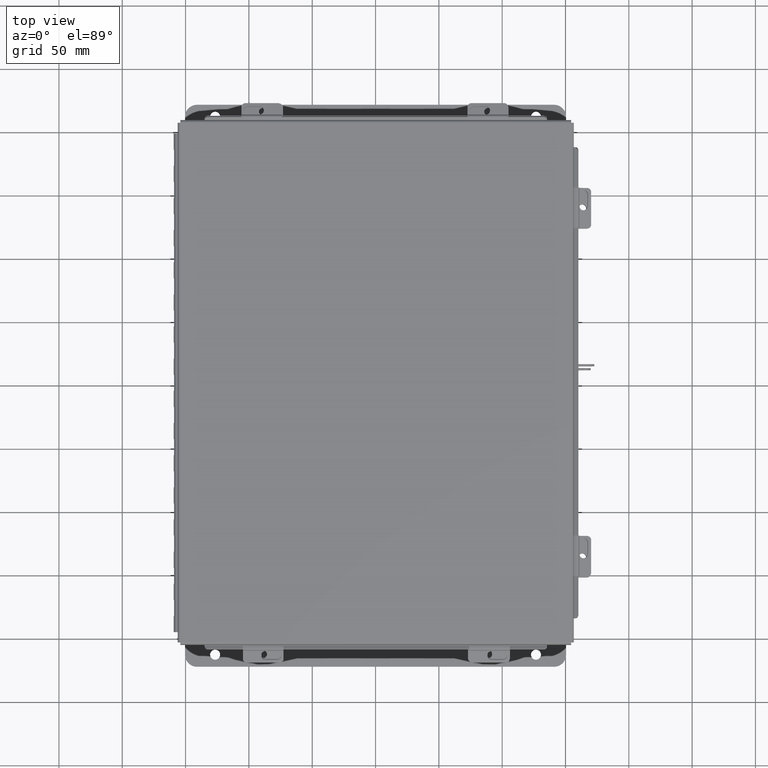
[diagram: clean part render]
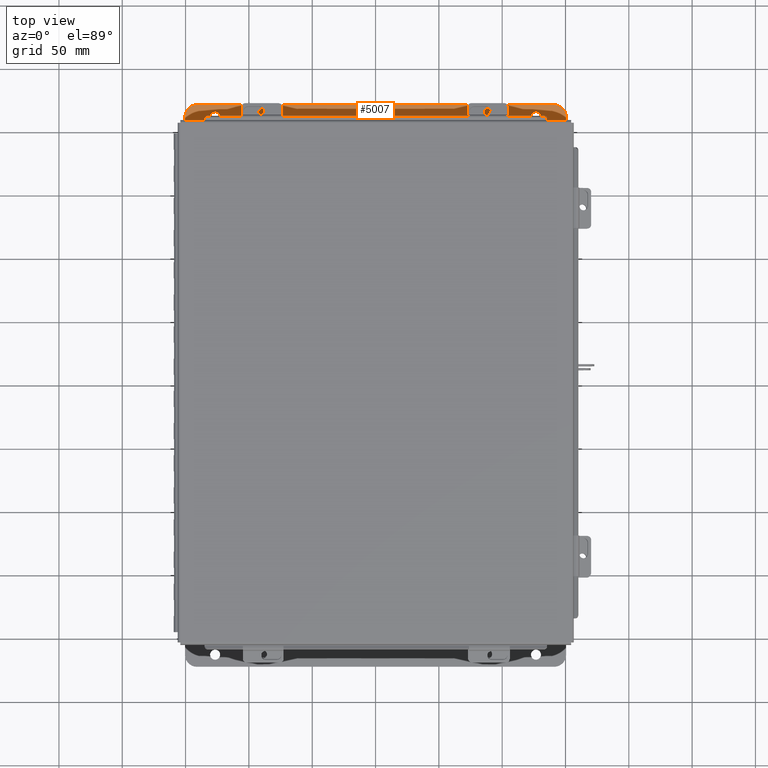
[diagram: same view with one face highlighted and labeled with its STEP entity id]
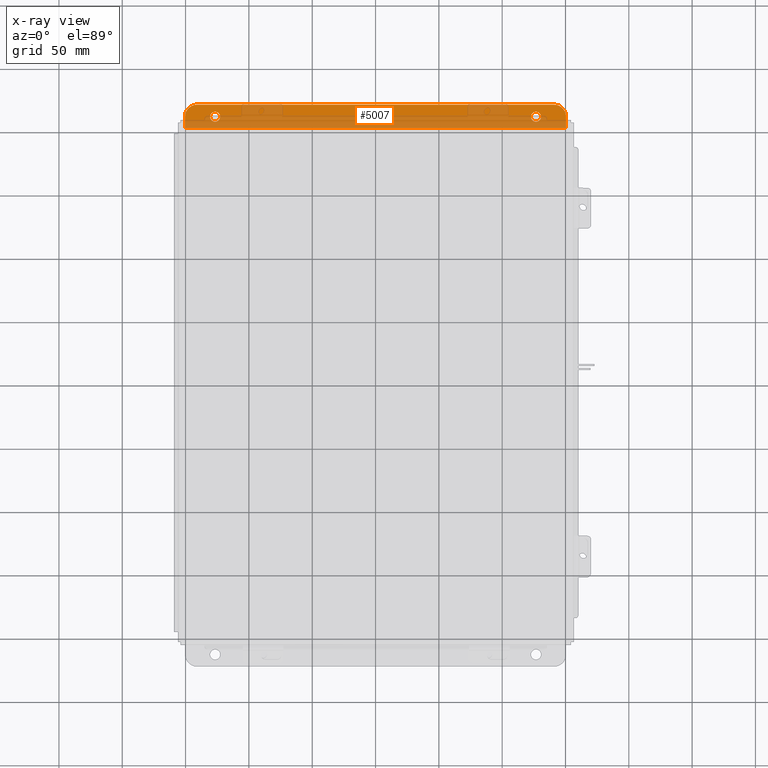
[diagram: x-ray of the same camera — body ghosted, the highlighted face saturated]
A machine part, top view. The second image highlights one B-rep face of the part: STEP entity #5007.
The next image is the same camera in x-ray: the body ghosted, the highlighted face saturated — about 61% of this face is hidden behind the body in this view.
In plain terms, the highlighted planar face has unit normal (0, 0, 1).
Its self-contained STEP definition (entity closure, byte-faithful):
#210 = DIRECTION ( 'NONE',  ( 0.0000000000000000000, -1.000000000000000000, 3.702694488566362300E-015 ) ) ;
#238 = VERTEX_POINT ( 'NONE', #7470 ) ;
#1096 = CARTESIAN_POINT ( 'NONE',  ( 4.987799999999998200, 0.3627999999999997300, -3.112300000000001200 ) ) ;
#1121 = FACE_BOUND ( 'NONE', #16791, .T. ) ;
#1174 = CIRCLE ( 'NONE', #14979, 0.3750000000000000600 ) ;
#1307 = ORIENTED_EDGE ( 'NONE', *, *, #19616, .F. ) ;
#1407 = CARTESIAN_POINT ( 'NONE',  ( 5.925299999999999100, 0.3627999999999997300, -3.112300000000001200 ) ) ;
#1458 = AXIS2_PLACEMENT_3D ( 'NONE', #17890, #8555, #19456 ) ;
#1601 = EDGE_CURVE ( 'NONE', #2248, #5212, #11404, .T. ) ;
#1748 = EDGE_CURVE ( 'NONE', #17316, #238, #14274, .T. ) ;
#1831 = CARTESIAN_POINT ( 'NONE',  ( 5.925299999999999100, 0.7378000000000000100, -3.112300000000003000 ) ) ;
#2062 = CARTESIAN_POINT ( 'NONE',  ( 5.550299999999999100, 0.7378000000000000100, -3.112300000000003000 ) ) ;
#2114 = CARTESIAN_POINT ( 'NONE',  ( 5.925299999999999100, 0.0000000000000000000, -3.112299999999999800 ) ) ;
#2243 = ORIENTED_EDGE ( 'NONE', *, *, #13269, .T. ) ;
#2248 = VERTEX_POINT ( 'NONE', #5188 ) ;
#3008 = EDGE_CURVE ( 'NONE', #6404, #17297, #18123, .T. ) ;
#3075 = VERTEX_POINT ( 'NONE', #16024 ) ;
#3082 = VECTOR ( 'NONE', #19415, 39.37007874015748100 ) ;
#3734 = DIRECTION ( 'NONE',  ( -0.0000000000000000000, -3.702694488566362300E-015, -1.000000000000000000 ) ) ;
#4056 = DIRECTION ( 'NONE',  ( 0.0000000000000000000, 3.702694488566362300E-015, 1.000000000000000000 ) ) ;
#4589 = ORIENTED_EDGE ( 'NONE', *, *, #1748, .T. ) ;
#4635 = EDGE_CURVE ( 'NONE', #9420, #10328, #18802, .T. ) ;
#5007 = ADVANCED_FACE ( 'NONE', ( #1121, #9373, #14014 ), #6392, .T. ) ;
#5049 = CARTESIAN_POINT ( 'NONE',  ( -5.550299999999999100, 0.7378000000000000100, -3.112300000000003000 ) ) ;
#5188 = CARTESIAN_POINT ( 'NONE',  ( -5.925300000000000000, 0.01300000000000010700, -3.112299999999999800 ) ) ;
#5212 = VERTEX_POINT ( 'NONE', #10092 ) ;
#5876 = EDGE_LOOP ( 'NONE', ( #17240, #17440, #13949, #2243, #15190, #1307 ) ) ;
#5896 = AXIS2_PLACEMENT_3D ( 'NONE', #13019, #3734, #14567 ) ;
#6150 = ORIENTED_EDGE ( 'NONE', *, *, #4635, .T. ) ;
#6169 = CARTESIAN_POINT ( 'NONE',  ( -4.987800000000000900, 0.2067999999999996000, -3.112300000000000700 ) ) ;
#6392 = PLANE ( 'NONE',  #13607 ) ;
#6404 = VERTEX_POINT ( 'NONE', #5049 ) ;
#6475 = EDGE_CURVE ( 'NONE', #14246, #3075, #16145, .T. ) ;
#7190 = LINE ( 'NONE', #13144, #3082 ) ;
#7470 = CARTESIAN_POINT ( 'NONE',  ( 4.987799999999998200, 0.2067999999999996000, -3.112300000000000700 ) ) ;
#8243 = CIRCLE ( 'NONE', #5896, 0.1560000000000001700 ) ;
#8353 = CARTESIAN_POINT ( 'NONE',  ( 4.987799999999998200, 0.5187999999999999300, -3.112300000000001600 ) ) ;
#8555 = DIRECTION ( 'NONE',  ( -0.0000000000000000000, -3.702694488566362300E-015, -1.000000000000000000 ) ) ;
#8569 = ORIENTED_EDGE ( 'NONE', *, *, #9524, .T. ) ;
#8830 = DIRECTION ( 'NONE',  ( 0.0000000000000000000, 3.702694488566362300E-015, 1.000000000000000000 ) ) ;
#8981 = CARTESIAN_POINT ( 'NONE',  ( -5.925300000000001800, 0.7378000000000000100, -3.112300000000003000 ) ) ;
#9261 = DIRECTION ( 'NONE',  ( -0.0000000000000000000, -3.702694488566362300E-015, -1.000000000000000000 ) ) ;
#9373 = FACE_BOUND ( 'NONE', #14563, .T. ) ;
#9420 = VERTEX_POINT ( 'NONE', #13509 ) ;
#9493 = DIRECTION ( 'NONE',  ( 0.0000000000000000000, 3.702694488566362300E-015, 1.000000000000000000 ) ) ;
#9524 = EDGE_CURVE ( 'NONE', #10328, #9420, #13338, .T. ) ;
#9823 = VECTOR ( 'NONE', #17320, 39.37007874015748100 ) ;
#10092 = CARTESIAN_POINT ( 'NONE',  ( -5.925300000000001800, 0.3628000000000008400, -3.112300000000001200 ) ) ;
#10328 = VERTEX_POINT ( 'NONE', #6169 ) ;
#10543 = DIRECTION ( 'NONE',  ( -0.0000000000000000000, 1.000000000000000000, -3.702694488566362300E-015 ) ) ;
#11342 = DIRECTION ( 'NONE',  ( 0.0000000000000000000, -1.000000000000000000, 3.502369222646487400E-015 ) ) ;
#11404 = LINE ( 'NONE', #8981, #15067 ) ;
#11414 = ORIENTED_EDGE ( 'NONE', *, *, #14782, .T. ) ;
#11437 = CIRCLE ( 'NONE', #11707, 0.3750000000000000600 ) ;
#11707 = AXIS2_PLACEMENT_3D ( 'NONE', #13344, #4056, #14894 ) ;
#12178 = AXIS2_PLACEMENT_3D ( 'NONE', #18621, #9261, #11342 ) ;
#13019 = CARTESIAN_POINT ( 'NONE',  ( 4.987799999999998200, 0.3627999999999997300, -3.112300000000001200 ) ) ;
#13144 = CARTESIAN_POINT ( 'NONE',  ( 5.925299999999999100, 0.01300000000000010700, -3.112299999999999800 ) ) ;
#13269 = EDGE_CURVE ( 'NONE', #6404, #5212, #11437, .T. ) ;
#13338 = CIRCLE ( 'NONE', #12178, 0.1560000000000001700 ) ;
#13344 = CARTESIAN_POINT ( 'NONE',  ( -5.550299999999999100, 0.3628000000000008400, -3.112300000000001200 ) ) ;
#13509 = CARTESIAN_POINT ( 'NONE',  ( -4.987800000000000900, 0.5187999999999999300, -3.112300000000001600 ) ) ;
#13607 = AXIS2_PLACEMENT_3D ( 'NONE', #17197, #9493, #210 ) ;
#13949 = ORIENTED_EDGE ( 'NONE', *, *, #3008, .F. ) ;
#14014 = FACE_OUTER_BOUND ( 'NONE', #5876, .T. ) ;
#14246 = VERTEX_POINT ( 'NONE', #1407 ) ;
#14274 = CIRCLE ( 'NONE', #14778, 0.1560000000000001700 ) ;
#14563 = EDGE_LOOP ( 'NONE', ( #4589, #11414 ) ) ;
#14567 = DIRECTION ( 'NONE',  ( 0.0000000000000000000, -1.000000000000000000, 3.502369222646487400E-015 ) ) ;
#14778 = AXIS2_PLACEMENT_3D ( 'NONE', #1096, #14893, #19120 ) ;
#14782 = EDGE_CURVE ( 'NONE', #238, #17316, #8243, .T. ) ;
#14893 = DIRECTION ( 'NONE',  ( -0.0000000000000000000, -3.702694488566362300E-015, -1.000000000000000000 ) ) ;
#14894 = DIRECTION ( 'NONE',  ( 0.0000000000000000000, -1.000000000000000000, 4.370956789862820400E-015 ) ) ;
#14979 = AXIS2_PLACEMENT_3D ( 'NONE', #18181, #8830, #19726 ) ;
#15015 = EDGE_CURVE ( 'NONE', #14246, #17297, #1174, .T. ) ;
#15067 = VECTOR ( 'NONE', #10543, 39.37007874015748100 ) ;
#15190 = ORIENTED_EDGE ( 'NONE', *, *, #1601, .F. ) ;
#16024 = CARTESIAN_POINT ( 'NONE',  ( 5.925299999999999100, 0.01300000000000010700, -3.112299999999999800 ) ) ;
#16145 = LINE ( 'NONE', #2114, #19786 ) ;
#16791 = EDGE_LOOP ( 'NONE', ( #6150, #8569 ) ) ;
#17197 = CARTESIAN_POINT ( 'NONE',  ( 0.0000000000000000000, -1.092739197465705300E-014, -3.112299999999999800 ) ) ;
#17240 = ORIENTED_EDGE ( 'NONE', *, *, #6475, .F. ) ;
#17297 = VERTEX_POINT ( 'NONE', #2062 ) ;
#17316 = VERTEX_POINT ( 'NONE', #8353 ) ;
#17320 = DIRECTION ( 'NONE',  ( 1.000000000000000000, -0.0000000000000000000, -0.0000000000000000000 ) ) ;
#17440 = ORIENTED_EDGE ( 'NONE', *, *, #15015, .T. ) ;
#17517 = DIRECTION ( 'NONE',  ( -0.0000000000000000000, -1.000000000000000000, 3.702694488566362300E-015 ) ) ;
#17890 = CARTESIAN_POINT ( 'NONE',  ( -4.987800000000000900, 0.3627999999999997300, -3.112300000000001200 ) ) ;
#18123 = LINE ( 'NONE', #1831, #9823 ) ;
#18181 = CARTESIAN_POINT ( 'NONE',  ( 5.550299999999999100, 0.3627999999999997300, -3.112300000000001200 ) ) ;
#18621 = CARTESIAN_POINT ( 'NONE',  ( -4.987800000000000900, 0.3627999999999997300, -3.112300000000001200 ) ) ;
#18802 = CIRCLE ( 'NONE', #1458, 0.1560000000000001700 ) ;
#19120 = DIRECTION ( 'NONE',  ( 0.0000000000000000000, -1.000000000000000000, 3.502369222646487400E-015 ) ) ;
#19415 = DIRECTION ( 'NONE',  ( -1.000000000000000000, 0.0000000000000000000, 0.0000000000000000000 ) ) ;
#19456 = DIRECTION ( 'NONE',  ( 0.0000000000000000000, -1.000000000000000000, 3.502369222646487400E-015 ) ) ;
#19616 = EDGE_CURVE ( 'NONE', #3075, #2248, #7190, .T. ) ;
#19726 = DIRECTION ( 'NONE',  ( 0.0000000000000000000, -1.000000000000000000, 4.370956789862820400E-015 ) ) ;
#19786 = VECTOR ( 'NONE', #17517, 39.37007874015748100 ) ;